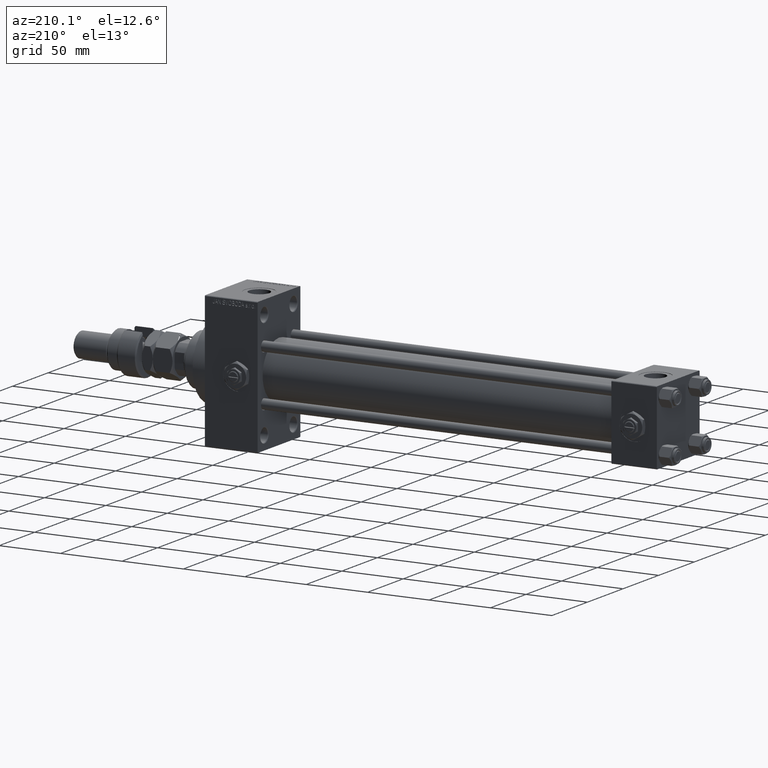
[diagram: clean part render]
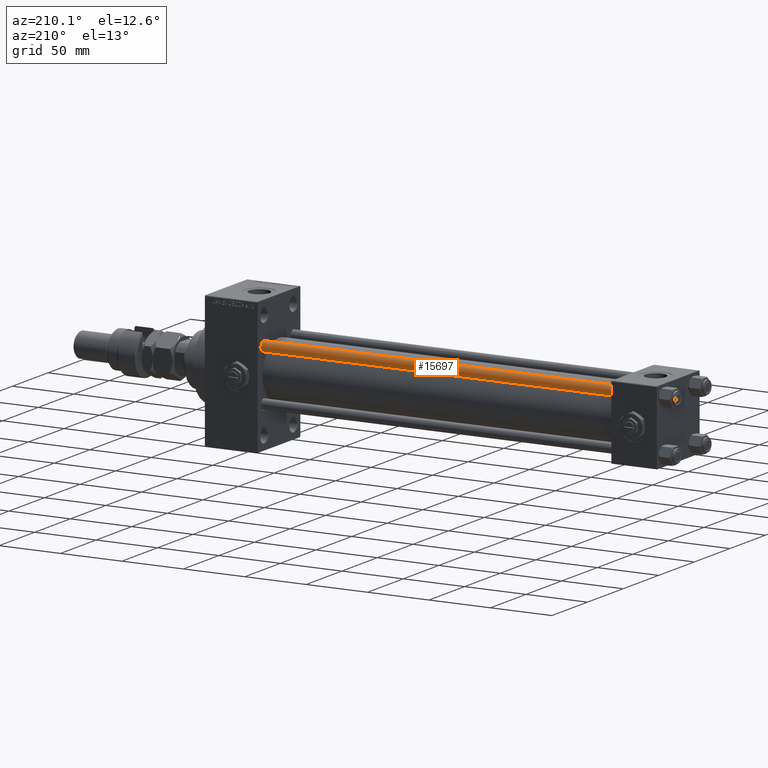
[diagram: same view with one face highlighted and labeled with its STEP entity id]
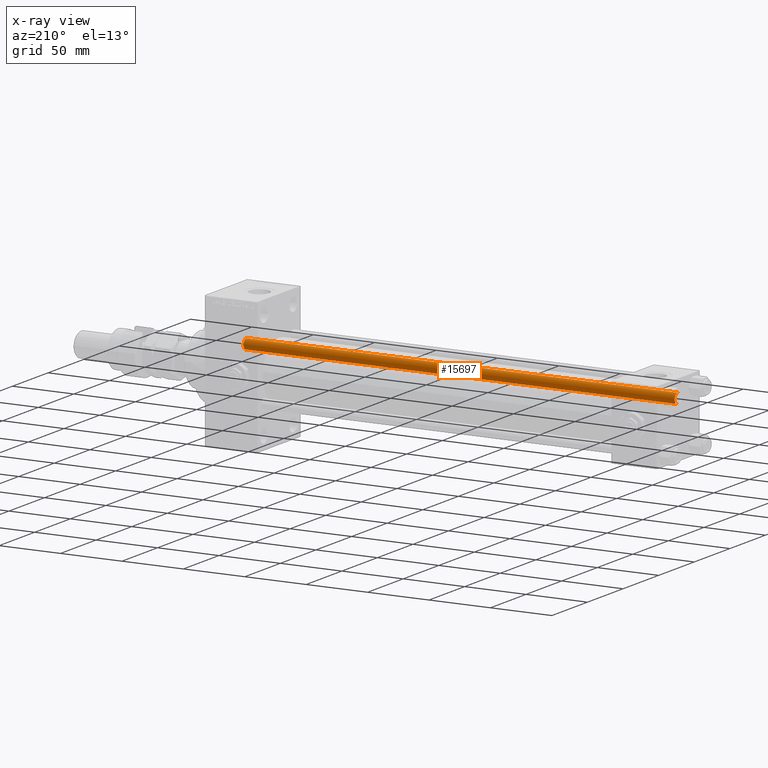
[diagram: x-ray of the same camera — body ghosted, the highlighted face saturated]
A machine part, auxiliary view. The second image highlights one B-rep face of the part: STEP entity #15697.
The next image is the same camera in x-ray: the body ghosted, the highlighted face saturated — about 0% of this face is hidden behind the body in this view.
In plain terms, the highlighted cylindrical surface (edge-blend (fillet) strip) has radius 4 mm, axis along (-1, -0, 0).
Its self-contained STEP definition (entity closure, byte-faithful):
#1319 = VECTOR ( 'NONE', #33995, 1000.000000000000000 ) ;
#1652 = CARTESIAN_POINT ( 'NONE',  ( 4.000000000000000000, 4.898587196589412829E-16, 352.0000000000000000 ) ) ;
#1845 = EDGE_CURVE ( 'NONE', #18030, #20587, #42463, .T. ) ;
#2592 = VERTEX_POINT ( 'NONE', #18935 ) ;
#3336 = EDGE_CURVE ( 'NONE', #20587, #33768, #42003, .T. ) ;
#9138 = EDGE_CURVE ( 'NONE', #2592, #33768, #45611, .T. ) ;
#13770 = DIRECTION ( 'NONE',  ( -0.000000000000000000, -0.000000000000000000, -1.000000000000000000 ) ) ;
#15697 = ADVANCED_FACE ( 'NONE', ( #38503 ), #35302, .T. ) ;
#17975 = CIRCLE ( 'NONE', #45904, 4.000000000000000000 ) ;
#18030 = VERTEX_POINT ( 'NONE', #26238 ) ;
#18342 = CARTESIAN_POINT ( 'NONE',  ( 0.000000000000000000, 0.000000000000000000, 352.0000000000000000 ) ) ;
#18864 = DIRECTION ( 'NONE',  ( -0.000000000000000000, -0.000000000000000000, -1.000000000000000000 ) ) ;
#18935 = CARTESIAN_POINT ( 'NONE',  ( -4.000000000000000000, 0.000000000000000000, 351.5000000000000000 ) ) ;
#19072 = CARTESIAN_POINT ( 'NONE',  ( 0.000000000000000000, 0.000000000000000000, 0.5000000000000004441 ) ) ;
#20587 = VERTEX_POINT ( 'NONE', #27155 ) ;
#22779 = DIRECTION ( 'NONE',  ( -0.000000000000000000, -0.000000000000000000, 1.000000000000000000 ) ) ;
#25214 = DIRECTION ( 'NONE',  ( 0.000000000000000000, 0.000000000000000000, -1.000000000000000000 ) ) ;
#26238 = CARTESIAN_POINT ( 'NONE',  ( 4.000000000000000000, 4.898587196589412829E-16, 351.5000000000000000 ) ) ;
#26757 = ORIENTED_EDGE ( 'NONE', *, *, #47717, .T. ) ;
#27155 = CARTESIAN_POINT ( 'NONE',  ( 4.000000000000000000, 4.898587196589412829E-16, 0.5000000000000004441 ) ) ;
#29702 = CARTESIAN_POINT ( 'NONE',  ( -4.000000000000000000, 0.000000000000000000, 352.0000000000000000 ) ) ;
#31899 = CARTESIAN_POINT ( 'NONE',  ( -4.000000000000000000, 0.000000000000000000, 0.5000000000000004441 ) ) ;
#33694 = DIRECTION ( 'NONE',  ( 1.000000000000000000, 0.000000000000000000, 0.000000000000000000 ) ) ;
#33768 = VERTEX_POINT ( 'NONE', #31899 ) ;
#33995 = DIRECTION ( 'NONE',  ( -0.000000000000000000, -0.000000000000000000, -1.000000000000000000 ) ) ;
#34714 = DIRECTION ( 'NONE',  ( 1.000000000000000000, 0.000000000000000000, 0.000000000000000000 ) ) ;
#35302 = CYLINDRICAL_SURFACE ( 'NONE', #51569, 4.000000000000000000 ) ;
#35333 = VECTOR ( 'NONE', #13770, 1000.000000000000000 ) ;
#38372 = ORIENTED_EDGE ( 'NONE', *, *, #3336, .T. ) ;
#38503 = FACE_OUTER_BOUND ( 'NONE', #48285, .T. ) ;
#42003 = CIRCLE ( 'NONE', #47830, 4.000000000000000000 ) ;
#42463 = LINE ( 'NONE', #1652, #1319 ) ;
#44399 = ORIENTED_EDGE ( 'NONE', *, *, #9138, .F. ) ;
#45611 = LINE ( 'NONE', #29702, #35333 ) ;
#45904 = AXIS2_PLACEMENT_3D ( 'NONE', #49075, #25214, #33694 ) ;
#46830 = ORIENTED_EDGE ( 'NONE', *, *, #1845, .T. ) ;
#47493 = DIRECTION ( 'NONE',  ( -1.000000000000000000, 0.000000000000000000, 0.000000000000000000 ) ) ;
#47717 = EDGE_CURVE ( 'NONE', #2592, #18030, #17975, .T. ) ;
#47830 = AXIS2_PLACEMENT_3D ( 'NONE', #19072, #22779, #34714 ) ;
#48285 = EDGE_LOOP ( 'NONE', ( #26757, #46830, #38372, #44399 ) ) ;
#49075 = CARTESIAN_POINT ( 'NONE',  ( 0.000000000000000000, 0.000000000000000000, 351.5000000000000000 ) ) ;
#51569 = AXIS2_PLACEMENT_3D ( 'NONE', #18342, #18864, #47493 ) ;